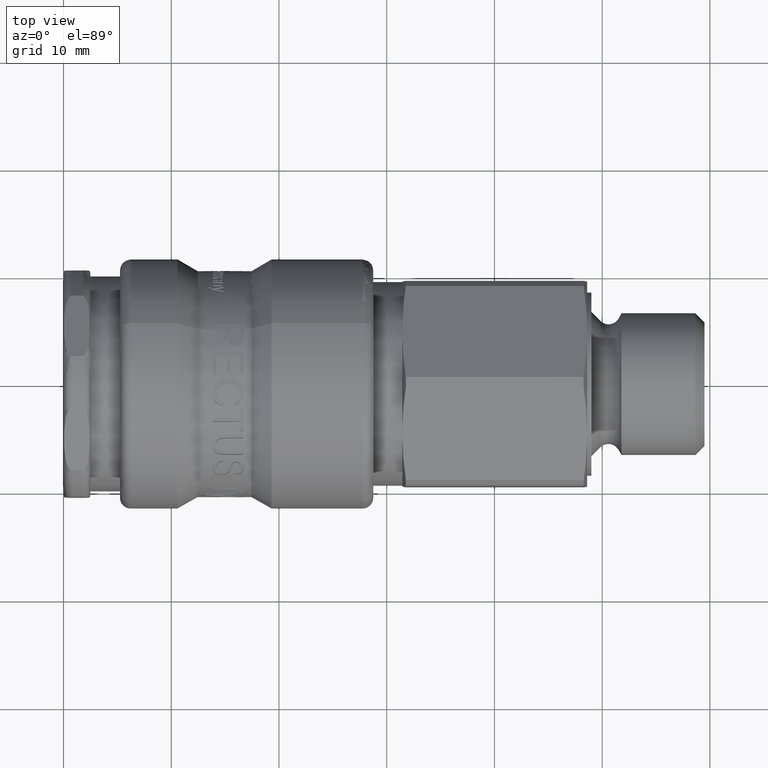
[diagram: clean part render]
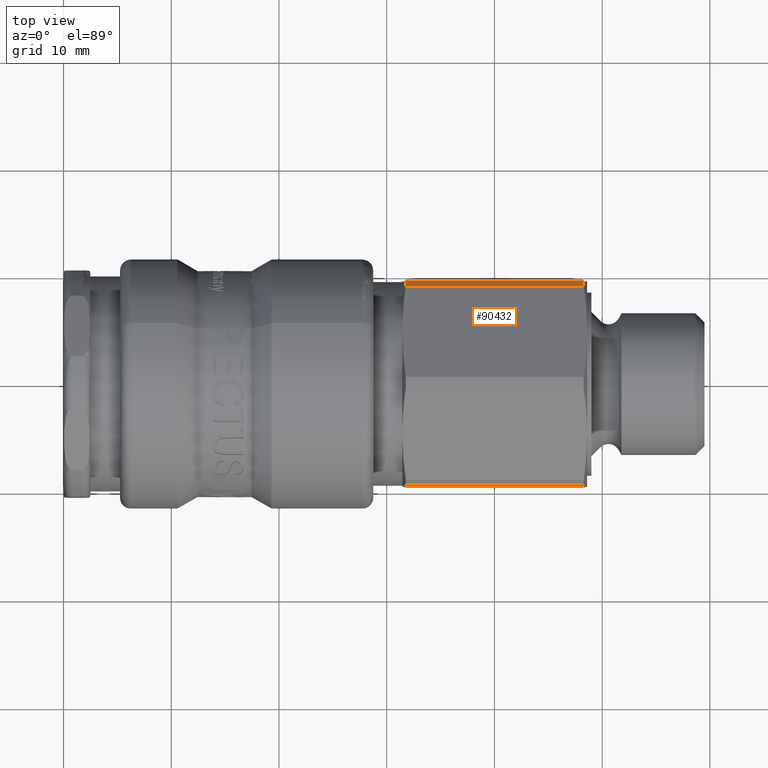
[diagram: same view with one face highlighted and labeled with its STEP entity id]
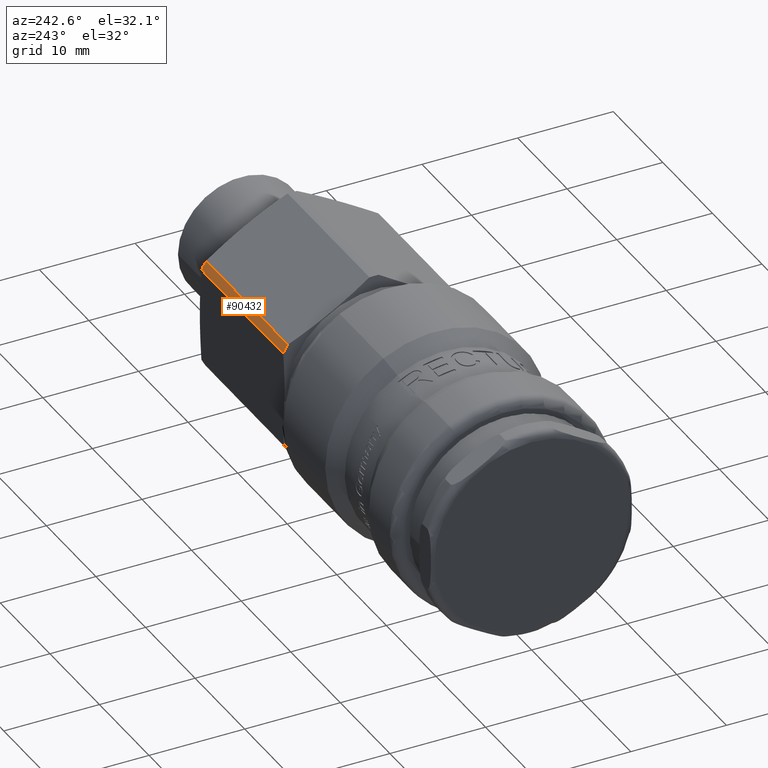
[diagram: same view with one face highlighted and labeled with its STEP entity id]
A machine part, top view. The second image highlights one B-rep face of the part: STEP entity #90432.
A second angle (auxiliary view) of the same face is appended — the face is thin or edge-on in the first view.
In plain terms, the highlighted cylindrical surface (partial cylindrical patch) has radius 10.7 mm, axis along (-1, 0, -0).
Its self-contained STEP definition (entity closure, byte-faithful):
#90046=CARTESIAN_POINT('',(31.778237760728128,9.499999999999986,4.923413450036463));
#90047=VERTEX_POINT('',#90046);
#90061=CARTESIAN_POINT('',(48.278460969082644,9.499999999999973,4.923413450036462));
#90062=VERTEX_POINT('',#90061);
#90063=CARTESIAN_POINT('',(48.278460969082651,9.499999999999975,4.923413450036466));
#90064=DIRECTION('',(-1.0,0.0,0.0));
#90065=VECTOR('',#90064,16.500223208354519);
#90066=LINE('',#90063,#90065);
#90067=EDGE_CURVE('',#90062,#90047,#90066,.T.);
#90260=CARTESIAN_POINT('',(48.278460969082644,9.01380112106553,5.765534610933948));
#90261=VERTEX_POINT('',#90260);
#90277=CARTESIAN_POINT('',(48.278460969082644,-2.924843E-014,1.247818E-045));
#90278=DIRECTION('',(-1.0,0.0,0.0));
#90279=DIRECTION('',(0.0,1.0,0.0));
#90280=AXIS2_PLACEMENT_3D('',#90277,#90278,#90279);
#90281=CIRCLE('',#90280,10.700000000000001);
#90282=EDGE_CURVE('',#90261,#90062,#90281,.T.);
#90408=CARTESIAN_POINT('',(40.028349364905381,-2.421073E-014,1.067180E-045));
#90409=DIRECTION('',(-1.0,6.106227E-016,-2.189529E-047));
#90410=DIRECTION('',(0.0,1.0,0.0));
#90411=AXIS2_PLACEMENT_3D('',#90408,#90409,#90410);
#90412=CYLINDRICAL_SURFACE('',#90411,10.700000000000003);
#90413=CARTESIAN_POINT('',(31.778237760728128,9.013801121065541,5.765534610933951));
#90414=VERTEX_POINT('',#90413);
#90415=CARTESIAN_POINT('',(31.778237760728132,9.013801121065546,5.765534610933947));
#90416=DIRECTION('',(1.0,0.0,0.0));
#90417=VECTOR('',#90416,16.500223208354519);
#90418=LINE('',#90415,#90417);
#90419=EDGE_CURVE('',#90414,#90261,#90418,.T.);
#90420=ORIENTED_EDGE('',*,*,#90419,.T.);
#90421=ORIENTED_EDGE('',*,*,#90282,.T.);
#90422=ORIENTED_EDGE('',*,*,#90067,.T.);
#90423=CARTESIAN_POINT('',(31.778237760728125,-1.917302E-014,8.865412E-046));
#90424=DIRECTION('',(-1.0,0.0,0.0));
#90425=DIRECTION('',(0.0,1.0,0.0));
#90426=AXIS2_PLACEMENT_3D('',#90423,#90424,#90425);
#90427=CIRCLE('',#90426,10.700000000000003);
#90428=EDGE_CURVE('',#90414,#90047,#90427,.T.);
#90429=ORIENTED_EDGE('',*,*,#90428,.F.);
#90430=EDGE_LOOP('',(#90420,#90421,#90422,#90429));
#90431=FACE_OUTER_BOUND('',#90430,.T.);
#90432=ADVANCED_FACE('',(#90431),#90412,.T.);